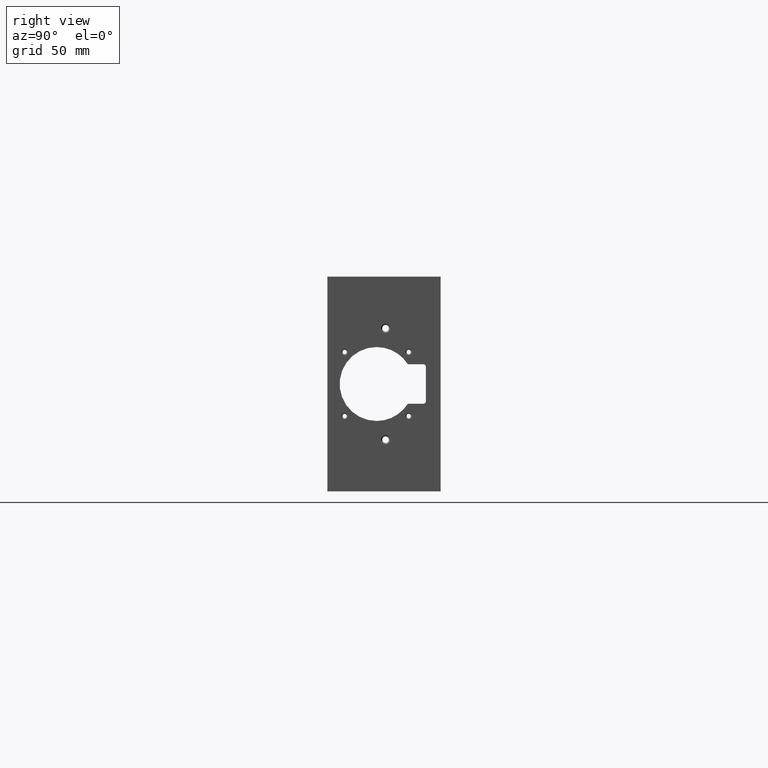
[diagram: clean part render]
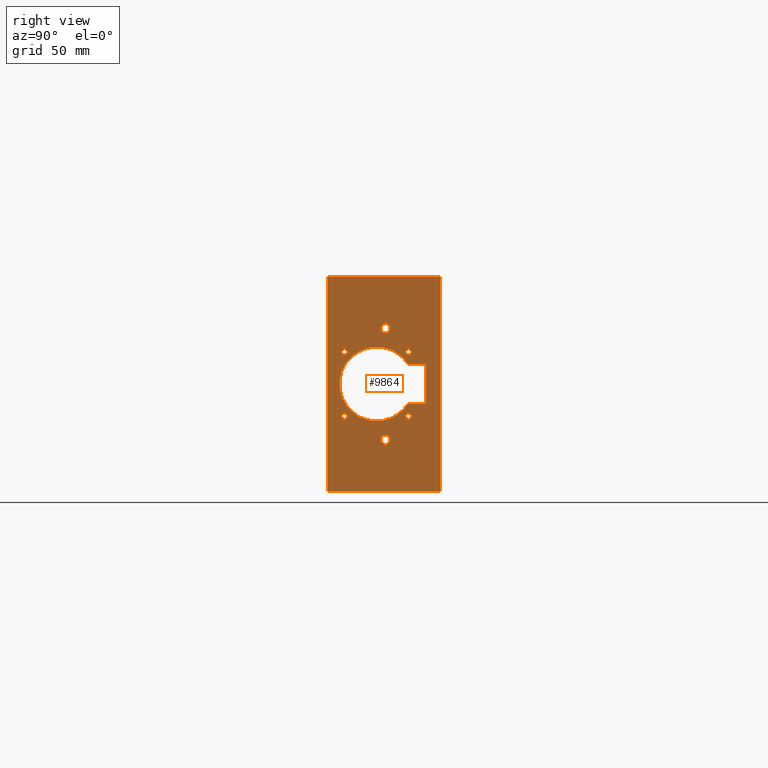
[diagram: same view with one face highlighted and labeled with its STEP entity id]
A machine part, right view. The second image highlights one B-rep face of the part: STEP entity #9864.
In plain terms, the highlighted planar face has unit normal (1, 0, 0).
Its self-contained STEP definition (entity closure, byte-faithful):
#8 = CARTESIAN_POINT ( 'NONE',  ( 7.000000000000000000, -0.6499999999999998000, -0.6499999999999999100 ) ) ;
#115 = DIRECTION ( 'NONE',  ( 1.000000000000000000, 0.0000000000000000000, 0.0000000000000000000 ) ) ;
#157 = CARTESIAN_POINT ( 'NONE',  ( 7.000000000000000000, -1.299999999999999800, -2.731847993664263200E-016 ) ) ;
#193 = DIRECTION ( 'NONE',  ( 0.0000000000000000000, 0.0000000000000000000, -1.000000000000000000 ) ) ;
#252 = DIRECTION ( 'NONE',  ( 1.000000000000000000, 0.0000000000000000000, 0.0000000000000000000 ) ) ;
#458 = CARTESIAN_POINT ( 'NONE',  ( 7.000000000000000000, -1.118999999999999800, -1.129999999999999900 ) ) ;
#519 = DIRECTION ( 'NONE',  ( 0.0000000000000000000, 0.0000000000000000000, -1.000000000000000000 ) ) ;
#624 = DIRECTION ( 'NONE',  ( 1.000000000000000000, 0.0000000000000000000, 0.0000000000000000000 ) ) ;
#774 = DIRECTION ( 'NONE',  ( 0.0000000000000000000, 0.0000000000000000000, -1.000000000000000000 ) ) ;
#1749 = CARTESIAN_POINT ( 'NONE',  ( 7.000000000000000000, 0.0000000000000000000, -2.180000000000000200 ) ) ;
#1767 = CARTESIAN_POINT ( 'NONE',  ( 7.000000000000000000, -0.6499999999999998000, 0.7135000000000001300 ) ) ;
#1792 = CARTESIAN_POINT ( 'NONE',  ( 7.000000000000000000, -0.6499999999999998000, 0.5865000000000001300 ) ) ;
#1828 = CARTESIAN_POINT ( 'NONE',  ( 7.000000000000000000, -0.6655711229775247400, 0.4000000000000020200 ) ) ;
#1843 = CARTESIAN_POINT ( 'NONE',  ( 7.000000000000000000, -2.299999999999999800, 2.180000000000000200 ) ) ;
#1846 = CARTESIAN_POINT ( 'NONE',  ( 7.000000000000000000, -0.3499999999999992600, -0.4000000000000008000 ) ) ;
#1859 = CARTESIAN_POINT ( 'NONE',  ( 7.000000000000000000, -0.6499999999999998000, -0.5864999999999999100 ) ) ;
#1861 = CARTESIAN_POINT ( 'NONE',  ( 7.000000000000000000, -0.3500000000000009200, 0.4000000000000020200 ) ) ;
#1868 = CARTESIAN_POINT ( 'NONE',  ( 7.000000000000000000, 0.0000000000000000000, 2.180000000000000200 ) ) ;
#1903 = CARTESIAN_POINT ( 'NONE',  ( 7.000000000000000000, -1.118999999999999800, 1.036999999999999700 ) ) ;
#1912 = CARTESIAN_POINT ( 'NONE',  ( 7.000000000000000000, -2.299999999999999800, -2.180000000000000200 ) ) ;
#1945 = CARTESIAN_POINT ( 'NONE',  ( 7.000000000000000000, -0.2999999999999998200, -0.3500000000000006400 ) ) ;
#1989 = CARTESIAN_POINT ( 'NONE',  ( 7.000000000000000000, -0.6499999999999998000, 0.6500000000000001300 ) ) ;
#2032 = DIRECTION ( 'NONE',  ( 1.000000000000000000, 0.0000000000000000000, 0.0000000000000000000 ) ) ;
#2035 = DIRECTION ( 'NONE',  ( 0.0000000000000000000, 0.0000000000000000000, -1.000000000000000000 ) ) ;
#2037 = CARTESIAN_POINT ( 'NONE',  ( 7.000000000000000000, -1.118999999999999800, 1.129999999999999700 ) ) ;
#2053 = DIRECTION ( 'NONE',  ( 1.000000000000000000, 0.0000000000000000000, 0.0000000000000000000 ) ) ;
#2070 = DIRECTION ( 'NONE',  ( 0.0000000000000000000, 0.0000000000000000000, -1.000000000000000000 ) ) ;
#2626 = CARTESIAN_POINT ( 'NONE',  ( 7.000000000000000000, -1.299999999999999800, -2.731847993664263200E-016 ) ) ;
#2691 = DIRECTION ( 'NONE',  ( 1.000000000000000000, 0.0000000000000000000, 0.0000000000000000000 ) ) ;
#2695 = DIRECTION ( 'NONE',  ( 0.0000000000000000000, 0.0000000000000000000, 1.000000000000000000 ) ) ;
#2698 = CARTESIAN_POINT ( 'NONE',  ( 7.000000000000000000, -0.3500000000000018700, 0.3499999999999999800 ) ) ;
#2701 = DIRECTION ( 'NONE',  ( 1.000000000000000000, 0.0000000000000000000, 0.0000000000000000000 ) ) ;
#2704 = DIRECTION ( 'NONE',  ( 0.0000000000000000000, 0.0000000000000000000, -1.000000000000000000 ) ) ;
#2748 = CARTESIAN_POINT ( 'NONE',  ( 7.000000000000000000, -1.118999999999999800, -1.223000000000000100 ) ) ;
#2879 = CARTESIAN_POINT ( 'NONE',  ( 7.000000000000000000, -0.3499999999999992600, -0.4000000000000008000 ) ) ;
#2881 = DIRECTION ( 'NONE',  ( 0.0000000000000000000, 1.000000000000000000, 0.0000000000000000000 ) ) ;
#3054 = FACE_BOUND ( 'NONE', #10376, .T. ) ;
#3067 = CIRCLE ( 'NONE', #13766, 0.7500000000000007800 ) ;
#3465 = CIRCLE ( 'NONE', #13444, 0.06350000000000001500 ) ;
#3604 = FACE_BOUND ( 'NONE', #10499, .T. ) ;
#3680 = CIRCLE ( 'NONE', #13733, 0.09300000000000006900 ) ;
#3807 = FACE_BOUND ( 'NONE', #10586, .T. ) ;
#3885 = LINE ( 'NONE', #12792, #3999 ) ;
#3907 = LINE ( 'NONE', #12917, #4086 ) ;
#3960 = LINE ( 'NONE', #12765, #4199 ) ;
#3963 = CIRCLE ( 'NONE', #12437, 0.09300000000000006900 ) ;
#3987 = CIRCLE ( 'NONE', #12429, 0.06350000000000001500 ) ;
#3999 = VECTOR ( 'NONE', #12784, 39.37007874015748100 ) ;
#4031 = CIRCLE ( 'NONE', #12434, 0.06350000000000001500 ) ;
#4046 = CIRCLE ( 'NONE', #12629, 0.06350000000000001500 ) ;
#4069 = CIRCLE ( 'NONE', #12431, 0.05000000000000014800 ) ;
#4078 = CIRCLE ( 'NONE', #12430, 0.06350000000000001500 ) ;
#4086 = VECTOR ( 'NONE', #12808, 39.37007874015748100 ) ;
#4107 = CIRCLE ( 'NONE', #12490, 0.09300000000000006900 ) ;
#4199 = VECTOR ( 'NONE', #12760, 39.37007874015748100 ) ;
#4288 = CIRCLE ( 'NONE', #12439, 0.06350000000000001500 ) ;
#4415 = DIRECTION ( 'NONE',  ( 0.0000000000000000000, 0.0000000000000000000, -1.000000000000000000 ) ) ;
#4424 = DIRECTION ( 'NONE',  ( 1.000000000000000000, 0.0000000000000000000, 0.0000000000000000000 ) ) ;
#4528 = DIRECTION ( 'NONE',  ( 1.000000000000000000, 0.0000000000000000000, 0.0000000000000000000 ) ) ;
#4920 = DIRECTION ( 'NONE',  ( 0.0000000000000000000, 0.0000000000000000000, -1.000000000000000000 ) ) ;
#4926 = CARTESIAN_POINT ( 'NONE',  ( 7.000000000000000000, -1.299999999999999800, -2.731847993664263200E-016 ) ) ;
#4944 = CARTESIAN_POINT ( 'NONE',  ( 7.000000000000000000, -2.299999999999999800, 2.180000000000000200 ) ) ;
#5059 = DIRECTION ( 'NONE',  ( 0.0000000000000000000, 0.0000000000000000000, -1.000000000000000000 ) ) ;
#5068 = CARTESIAN_POINT ( 'NONE',  ( 7.000000000000000000, 0.0000000000000000000, -2.180000000000000200 ) ) ;
#5197 = DIRECTION ( 'NONE',  ( 0.0000000000000000000, 1.000000000000000000, 0.0000000000000000000 ) ) ;
#5227 = CARTESIAN_POINT ( 'NONE',  ( 7.000000000000000000, -1.949999999999999700, 0.6500000000000001300 ) ) ;
#5247 = ORIENTED_EDGE ( 'NONE', *, *, #14203, .F. ) ;
#5276 = ORIENTED_EDGE ( 'NONE', *, *, #14199, .F. ) ;
#5308 = ORIENTED_EDGE ( 'NONE', *, *, #7622, .F. ) ;
#5346 = ORIENTED_EDGE ( 'NONE', *, *, #14210, .F. ) ;
#5475 = ORIENTED_EDGE ( 'NONE', *, *, #14176, .F. ) ;
#5506 = ORIENTED_EDGE ( 'NONE', *, *, #14218, .F. ) ;
#5536 = ORIENTED_EDGE ( 'NONE', *, *, #7187, .F. ) ;
#5589 = ORIENTED_EDGE ( 'NONE', *, *, #7204, .F. ) ;
#5618 = ORIENTED_EDGE ( 'NONE', *, *, #14187, .T. ) ;
#5670 = ORIENTED_EDGE ( 'NONE', *, *, #13627, .F. ) ;
#5680 = ORIENTED_EDGE ( 'NONE', *, *, #7162, .F. ) ;
#5732 = ORIENTED_EDGE ( 'NONE', *, *, #13296, .F. ) ;
#5759 = ORIENTED_EDGE ( 'NONE', *, *, #7751, .F. ) ;
#5826 = ORIENTED_EDGE ( 'NONE', *, *, #7676, .F. ) ;
#5830 = ORIENTED_EDGE ( 'NONE', *, *, #13833, .F. ) ;
#5919 = ORIENTED_EDGE ( 'NONE', *, *, #13630, .F. ) ;
#6008 = ORIENTED_EDGE ( 'NONE', *, *, #14201, .F. ) ;
#6043 = ORIENTED_EDGE ( 'NONE', *, *, #13825, .F. ) ;
#6118 = ORIENTED_EDGE ( 'NONE', *, *, #7232, .F. ) ;
#6134 = ORIENTED_EDGE ( 'NONE', *, *, #14221, .F. ) ;
#6214 = ORIENTED_EDGE ( 'NONE', *, *, #14212, .F. ) ;
#6394 = ORIENTED_EDGE ( 'NONE', *, *, #7115, .T. ) ;
#6397 = ORIENTED_EDGE ( 'NONE', *, *, #14209, .F. ) ;
#6402 = ORIENTED_EDGE ( 'NONE', *, *, #14207, .F. ) ;
#6535 = VERTEX_POINT ( 'NONE', #12169 ) ;
#6673 = VERTEX_POINT ( 'NONE', #11949 ) ;
#6719 = VERTEX_POINT ( 'NONE', #11404 ) ;
#6749 = VERTEX_POINT ( 'NONE', #11929 ) ;
#6754 = VERTEX_POINT ( 'NONE', #11919 ) ;
#6828 = VERTEX_POINT ( 'NONE', #11779 ) ;
#6841 = VERTEX_POINT ( 'NONE', #12084 ) ;
#6860 = VERTEX_POINT ( 'NONE', #11443 ) ;
#6882 = VERTEX_POINT ( 'NONE', #11578 ) ;
#6892 = VERTEX_POINT ( 'NONE', #11437 ) ;
#6939 = VERTEX_POINT ( 'NONE', #11542 ) ;
#7115 = EDGE_CURVE ( 'NONE', #11830, #11928, #8741, .T. ) ;
#7162 = EDGE_CURVE ( 'NONE', #12116, #11361, #8864, .T. ) ;
#7187 = EDGE_CURVE ( 'NONE', #11830, #12116, #9204, .T. ) ;
#7204 = EDGE_CURVE ( 'NONE', #6749, #6841, #9099, .T. ) ;
#7232 = EDGE_CURVE ( 'NONE', #6754, #6939, #8800, .T. ) ;
#7622 = EDGE_CURVE ( 'NONE', #6535, #11518, #3680, .T. ) ;
#7676 = EDGE_CURVE ( 'NONE', #6841, #6892, #3067, .T. ) ;
#7751 = EDGE_CURVE ( 'NONE', #12069, #6673, #3465, .T. ) ;
#7917 = CIRCLE ( 'NONE', #12478, 0.05000000000000206400 ) ;
#7986 = LINE ( 'NONE', #2879, #8044 ) ;
#7994 = CIRCLE ( 'NONE', #12543, 0.09300000000000006900 ) ;
#8044 = VECTOR ( 'NONE', #2881, 39.37007874015748100 ) ;
#8052 = CIRCLE ( 'NONE', #12581, 0.06350000000000001500 ) ;
#8592 = FACE_OUTER_BOUND ( 'NONE', #10725, .T. ) ;
#8593 = FACE_BOUND ( 'NONE', #10568, .T. ) ;
#8597 = FACE_BOUND ( 'NONE', #10474, .T. ) ;
#8598 = FACE_BOUND ( 'NONE', #10439, .T. ) ;
#8599 = FACE_BOUND ( 'NONE', #10193, .T. ) ;
#8636 = CIRCLE ( 'NONE', #12475, 0.7500000000000007800 ) ;
#8741 = LINE ( 'NONE', #12329, #9284 ) ;
#8800 = CIRCLE ( 'NONE', #13184, 0.06350000000000001500 ) ;
#8818 = VECTOR ( 'NONE', #5059, 39.37007874015748100 ) ;
#8864 = LINE ( 'NONE', #5068, #8818 ) ;
#9062 = VECTOR ( 'NONE', #5197, 39.37007874015748100 ) ;
#9099 = CIRCLE ( 'NONE', #13155, 0.7500000000000007800 ) ;
#9204 = LINE ( 'NONE', #4944, #9062 ) ;
#9284 = VECTOR ( 'NONE', #12291, 39.37007874015748100 ) ;
#9864 = ADVANCED_FACE ( 'NONE', ( #3604, #8599, #8597, #8593, #3807, #3054, #8598, #8592 ), #10968, .T. ) ;
#10193 = EDGE_LOOP ( 'NONE', ( #6008, #5308 ) ) ;
#10376 = EDGE_LOOP ( 'NONE', ( #5247, #5759 ) ) ;
#10439 = EDGE_LOOP ( 'NONE', ( #6402, #5919, #6134, #5346, #5732, #5826, #5589, #5670 ) ) ;
#10474 = EDGE_LOOP ( 'NONE', ( #6214, #6043 ) ) ;
#10499 = EDGE_LOOP ( 'NONE', ( #5506, #5830 ) ) ;
#10568 = EDGE_LOOP ( 'NONE', ( #6397, #6118 ) ) ;
#10586 = EDGE_LOOP ( 'NONE', ( #5276, #5475 ) ) ;
#10725 = EDGE_LOOP ( 'NONE', ( #5680, #5536, #6394, #5618 ) ) ;
#10927 = CARTESIAN_POINT ( 'NONE',  ( 7.000000000000000000, -2.299999999999999800, -2.180000000000000200 ) ) ;
#10968 = PLANE ( 'NONE',  #13503 ) ;
#11176 = DIRECTION ( 'NONE',  ( 0.0000000000000000000, 0.0000000000000000000, -1.000000000000000000 ) ) ;
#11234 = DIRECTION ( 'NONE',  ( 1.000000000000000000, 0.0000000000000000000, 0.0000000000000000000 ) ) ;
#11361 = VERTEX_POINT ( 'NONE', #1749 ) ;
#11404 = CARTESIAN_POINT ( 'NONE',  ( 7.000000000000000000, -1.949999999999999700, -0.7134999999999999100 ) ) ;
#11418 = VERTEX_POINT ( 'NONE', #1767 ) ;
#11437 = CARTESIAN_POINT ( 'NONE',  ( 7.000000000000000000, -0.6655711229775233000, -0.4000000000000009100 ) ) ;
#11443 = CARTESIAN_POINT ( 'NONE',  ( 7.000000000000000000, -0.2999999999999998200, 0.3500000000000000900 ) ) ;
#11518 = VERTEX_POINT ( 'NONE', #2748 ) ;
#11542 = CARTESIAN_POINT ( 'NONE',  ( 7.000000000000000000, -1.949999999999999700, 0.5865000000000001300 ) ) ;
#11551 = VERTEX_POINT ( 'NONE', #1903 ) ;
#11578 = CARTESIAN_POINT ( 'NONE',  ( 7.000000000000000000, -1.118999999999999800, 1.222999999999999900 ) ) ;
#11779 = CARTESIAN_POINT ( 'NONE',  ( 7.000000000000000000, -1.949999999999999700, -0.5864999999999999100 ) ) ;
#11822 = VERTEX_POINT ( 'NONE', #1828 ) ;
#11830 = VERTEX_POINT ( 'NONE', #1843 ) ;
#11834 = VERTEX_POINT ( 'NONE', #1846 ) ;
#11837 = VERTEX_POINT ( 'NONE', #1792 ) ;
#11919 = CARTESIAN_POINT ( 'NONE',  ( 7.000000000000000000, -1.949999999999999700, 0.7135000000000001300 ) ) ;
#11928 = VERTEX_POINT ( 'NONE', #1912 ) ;
#11929 = CARTESIAN_POINT ( 'NONE',  ( 7.000000000000000000, -1.299999999999999800, 0.7500000000000004400 ) ) ;
#11949 = CARTESIAN_POINT ( 'NONE',  ( 7.000000000000000000, -0.6499999999999998000, -0.7134999999999999100 ) ) ;
#12069 = VERTEX_POINT ( 'NONE', #1859 ) ;
#12084 = CARTESIAN_POINT ( 'NONE',  ( 7.000000000000000000, -1.299999999999999800, -0.7500000000000010000 ) ) ;
#12105 = VERTEX_POINT ( 'NONE', #1861 ) ;
#12116 = VERTEX_POINT ( 'NONE', #1868 ) ;
#12169 = CARTESIAN_POINT ( 'NONE',  ( 7.000000000000000000, -1.118999999999999800, -1.036999999999999900 ) ) ;
#12188 = VERTEX_POINT ( 'NONE', #1945 ) ;
#12291 = DIRECTION ( 'NONE',  ( 0.0000000000000000000, 0.0000000000000000000, -1.000000000000000000 ) ) ;
#12329 = CARTESIAN_POINT ( 'NONE',  ( 7.000000000000000000, -2.299999999999999800, -2.180000000000000200 ) ) ;
#12429 = AXIS2_PLACEMENT_3D ( 'NONE', #12943, #13107, #12924 ) ;
#12430 = AXIS2_PLACEMENT_3D ( 'NONE', #12991, #12858, #13125 ) ;
#12431 = AXIS2_PLACEMENT_3D ( 'NONE', #12819, #12840, #12751 ) ;
#12434 = AXIS2_PLACEMENT_3D ( 'NONE', #12831, #12942, #12813 ) ;
#12437 = AXIS2_PLACEMENT_3D ( 'NONE', #13045, #12753, #12816 ) ;
#12439 = AXIS2_PLACEMENT_3D ( 'NONE', #12936, #12892, #12826 ) ;
#12475 = AXIS2_PLACEMENT_3D ( 'NONE', #2626, #2701, #2704 ) ;
#12478 = AXIS2_PLACEMENT_3D ( 'NONE', #2698, #2691, #2695 ) ;
#12490 = AXIS2_PLACEMENT_3D ( 'NONE', #12870, #12914, #12923 ) ;
#12543 = AXIS2_PLACEMENT_3D ( 'NONE', #2037, #2032, #2035 ) ;
#12581 = AXIS2_PLACEMENT_3D ( 'NONE', #1989, #2053, #2070 ) ;
#12629 = AXIS2_PLACEMENT_3D ( 'NONE', #12937, #12828, #12841 ) ;
#12751 = DIRECTION ( 'NONE',  ( 0.0000000000000000000, 0.0000000000000000000, -1.000000000000000000 ) ) ;
#12753 = DIRECTION ( 'NONE',  ( 1.000000000000000000, 0.0000000000000000000, 0.0000000000000000000 ) ) ;
#12760 = DIRECTION ( 'NONE',  ( 0.0000000000000000000, 1.000000000000000000, 0.0000000000000000000 ) ) ;
#12765 = CARTESIAN_POINT ( 'NONE',  ( 7.000000000000000000, -2.299999999999999800, -2.180000000000000200 ) ) ;
#12784 = DIRECTION ( 'NONE',  ( 0.0000000000000000000, 0.0000000000000000000, 1.000000000000000000 ) ) ;
#12792 = CARTESIAN_POINT ( 'NONE',  ( 7.000000000000000000, -0.2999999999999998200, -0.3500000000000006400 ) ) ;
#12808 = DIRECTION ( 'NONE',  ( 0.0000000000000000000, -1.000000000000000000, 0.0000000000000000000 ) ) ;
#12813 = DIRECTION ( 'NONE',  ( 0.0000000000000000000, 0.0000000000000000000, -1.000000000000000000 ) ) ;
#12816 = DIRECTION ( 'NONE',  ( 0.0000000000000000000, 0.0000000000000000000, -1.000000000000000000 ) ) ;
#12819 = CARTESIAN_POINT ( 'NONE',  ( 7.000000000000000000, -0.3499999999999999800, -0.3500000000000006400 ) ) ;
#12826 = DIRECTION ( 'NONE',  ( 0.0000000000000000000, 0.0000000000000000000, -1.000000000000000000 ) ) ;
#12828 = DIRECTION ( 'NONE',  ( 1.000000000000000000, 0.0000000000000000000, 0.0000000000000000000 ) ) ;
#12831 = CARTESIAN_POINT ( 'NONE',  ( 7.000000000000000000, -0.6499999999999998000, -0.6499999999999999100 ) ) ;
#12840 = DIRECTION ( 'NONE',  ( 1.000000000000000000, 0.0000000000000000000, 0.0000000000000000000 ) ) ;
#12841 = DIRECTION ( 'NONE',  ( 0.0000000000000000000, 0.0000000000000000000, -1.000000000000000000 ) ) ;
#12858 = DIRECTION ( 'NONE',  ( 1.000000000000000000, 0.0000000000000000000, 0.0000000000000000000 ) ) ;
#12870 = CARTESIAN_POINT ( 'NONE',  ( 7.000000000000000000, -1.118999999999999800, 1.129999999999999700 ) ) ;
#12892 = DIRECTION ( 'NONE',  ( 1.000000000000000000, 0.0000000000000000000, 0.0000000000000000000 ) ) ;
#12914 = DIRECTION ( 'NONE',  ( 1.000000000000000000, 0.0000000000000000000, 0.0000000000000000000 ) ) ;
#12917 = CARTESIAN_POINT ( 'NONE',  ( 7.000000000000000000, -0.3500000000000009200, 0.4000000000000020200 ) ) ;
#12923 = DIRECTION ( 'NONE',  ( 0.0000000000000000000, 0.0000000000000000000, -1.000000000000000000 ) ) ;
#12924 = DIRECTION ( 'NONE',  ( 0.0000000000000000000, 0.0000000000000000000, -1.000000000000000000 ) ) ;
#12936 = CARTESIAN_POINT ( 'NONE',  ( 7.000000000000000000, -1.949999999999999700, -0.6499999999999999100 ) ) ;
#12937 = CARTESIAN_POINT ( 'NONE',  ( 7.000000000000000000, -1.949999999999999700, -0.6499999999999999100 ) ) ;
#12942 = DIRECTION ( 'NONE',  ( 1.000000000000000000, 0.0000000000000000000, 0.0000000000000000000 ) ) ;
#12943 = CARTESIAN_POINT ( 'NONE',  ( 7.000000000000000000, -0.6499999999999998000, 0.6500000000000001300 ) ) ;
#12991 = CARTESIAN_POINT ( 'NONE',  ( 7.000000000000000000, -1.949999999999999700, 0.6500000000000001300 ) ) ;
#13045 = CARTESIAN_POINT ( 'NONE',  ( 7.000000000000000000, -1.118999999999999800, -1.129999999999999900 ) ) ;
#13107 = DIRECTION ( 'NONE',  ( 1.000000000000000000, 0.0000000000000000000, 0.0000000000000000000 ) ) ;
#13125 = DIRECTION ( 'NONE',  ( 0.0000000000000000000, 0.0000000000000000000, -1.000000000000000000 ) ) ;
#13155 = AXIS2_PLACEMENT_3D ( 'NONE', #4926, #4528, #4920 ) ;
#13184 = AXIS2_PLACEMENT_3D ( 'NONE', #5227, #4424, #4415 ) ;
#13296 = EDGE_CURVE ( 'NONE', #6892, #11834, #7986, .T. ) ;
#13444 = AXIS2_PLACEMENT_3D ( 'NONE', #8, #252, #519 ) ;
#13503 = AXIS2_PLACEMENT_3D ( 'NONE', #10927, #11234, #11176 ) ;
#13627 = EDGE_CURVE ( 'NONE', #11822, #6749, #8636, .T. ) ;
#13630 = EDGE_CURVE ( 'NONE', #6860, #12105, #7917, .T. ) ;
#13733 = AXIS2_PLACEMENT_3D ( 'NONE', #458, #115, #774 ) ;
#13766 = AXIS2_PLACEMENT_3D ( 'NONE', #157, #624, #193 ) ;
#13825 = EDGE_CURVE ( 'NONE', #11418, #11837, #8052, .T. ) ;
#13833 = EDGE_CURVE ( 'NONE', #6882, #11551, #7994, .T. ) ;
#14176 = EDGE_CURVE ( 'NONE', #6828, #6719, #4046, .T. ) ;
#14187 = EDGE_CURVE ( 'NONE', #11928, #11361, #3960, .T. ) ;
#14199 = EDGE_CURVE ( 'NONE', #6719, #6828, #4288, .T. ) ;
#14201 = EDGE_CURVE ( 'NONE', #11518, #6535, #3963, .T. ) ;
#14203 = EDGE_CURVE ( 'NONE', #6673, #12069, #4031, .T. ) ;
#14207 = EDGE_CURVE ( 'NONE', #12105, #11822, #3907, .T. ) ;
#14209 = EDGE_CURVE ( 'NONE', #6939, #6754, #4078, .T. ) ;
#14210 = EDGE_CURVE ( 'NONE', #11834, #12188, #4069, .T. ) ;
#14212 = EDGE_CURVE ( 'NONE', #11837, #11418, #3987, .T. ) ;
#14218 = EDGE_CURVE ( 'NONE', #11551, #6882, #4107, .T. ) ;
#14221 = EDGE_CURVE ( 'NONE', #12188, #6860, #3885, .T. ) ;